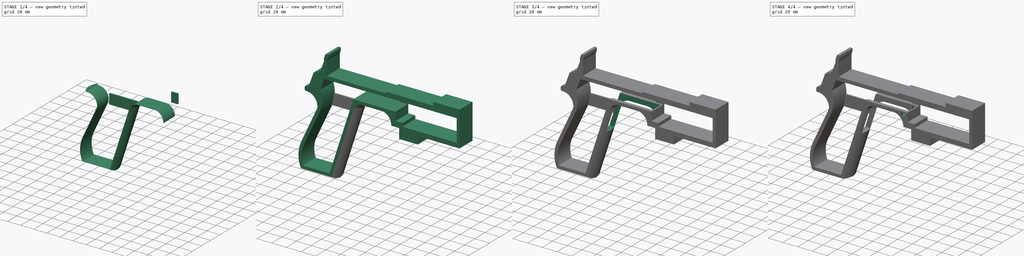
[diagram: build sequence overview — one tinted view per stage of 4, left to right]
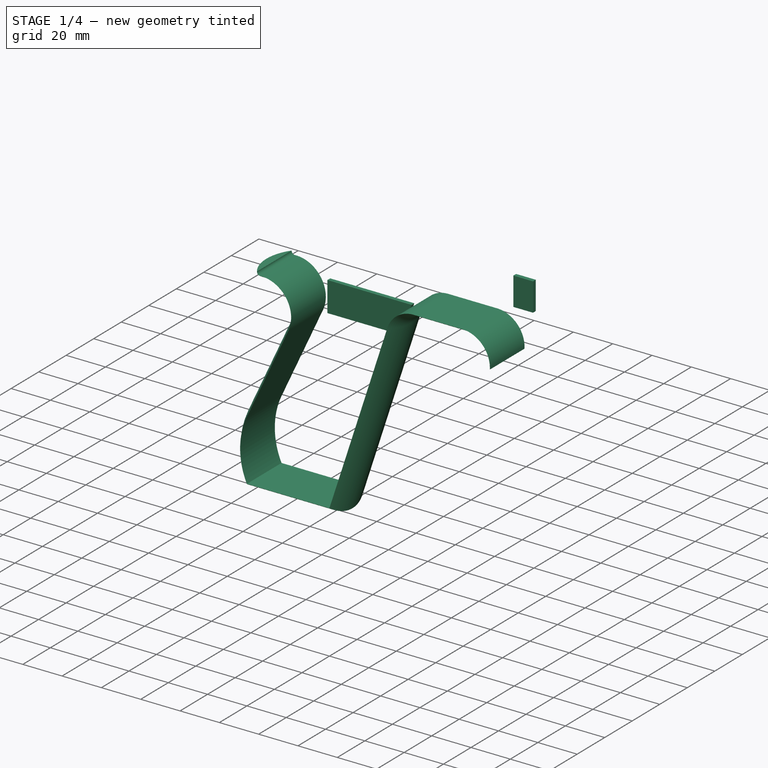
[diagram: stage 1 of 4 — iso view after this stage's code; geometry added in this stage tinted green]
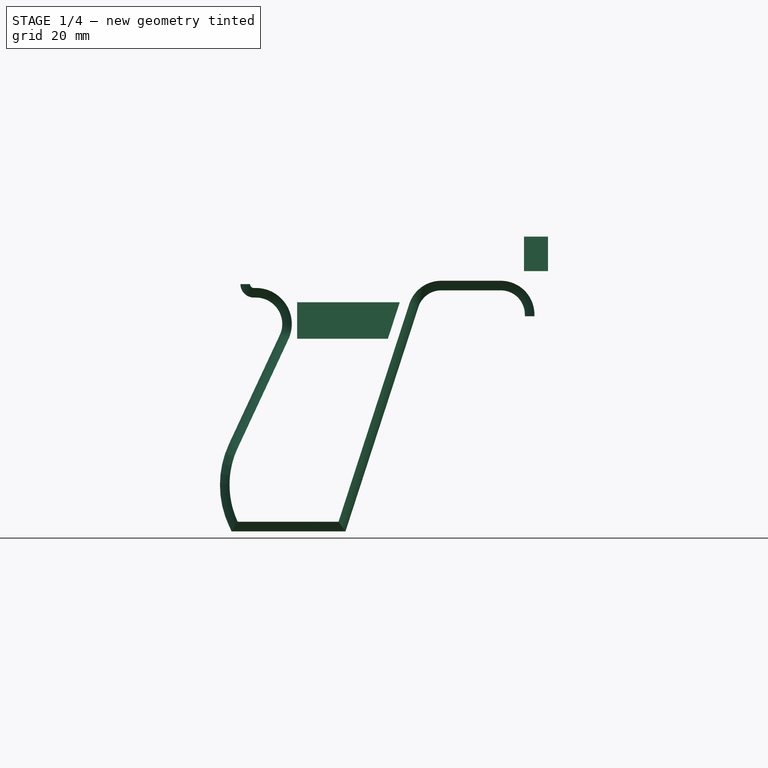
[diagram: stage 1 of 4 — front view after this stage's code; geometry added in this stage tinted green]
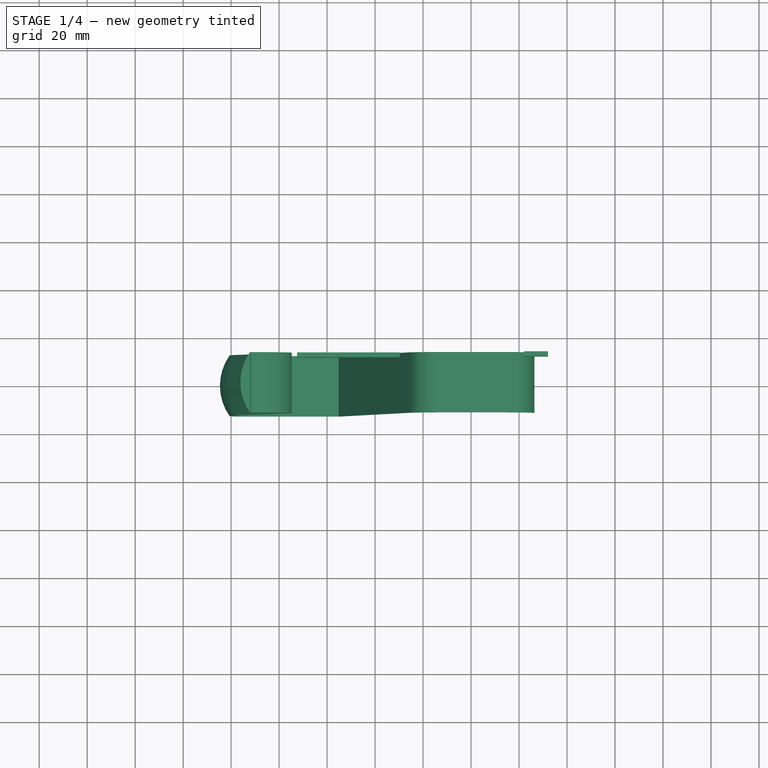
[diagram: stage 1 of 4 — top view after this stage's code; geometry added in this stage tinted green]
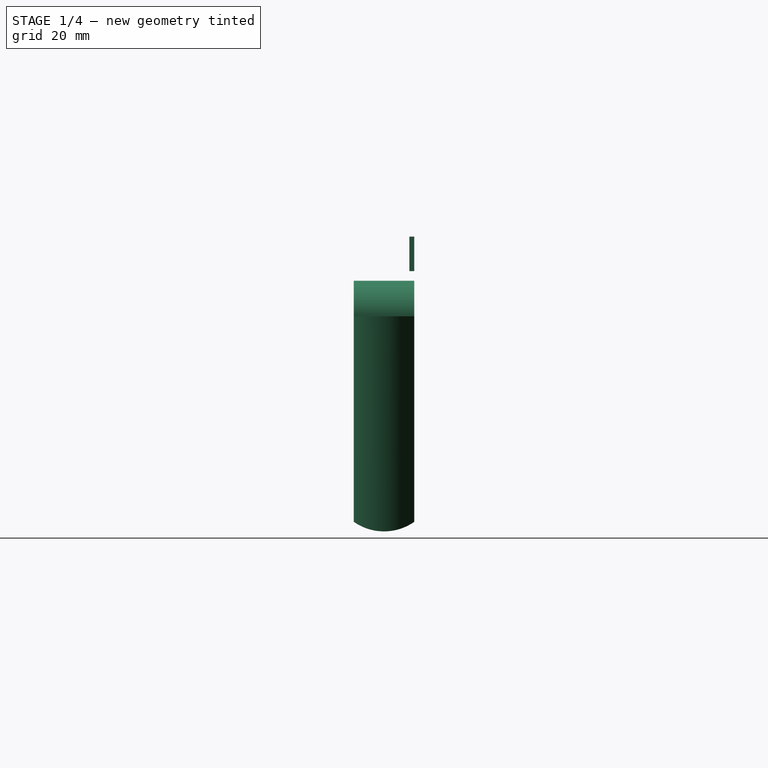
[diagram: stage 1 of 4 — right view after this stage's code; geometry added in this stage tinted green]
FCSTD DOCUMENT  (FreeCAD 1.0R39319 (Git))
Label: PICON-OF
License: All rights reserved
LicenseURL: https://en.wikipedia.org/wiki/All_rights_reserved
objects: Sketcher::SketchObject×6, Part::Extrusion×4, PartDesign::Plane×2, Part::MultiFuse×2, Part::Cut×2, Part::Sweep×1, PartDesign::ShapeBinder×1, PartDesign::Body×1
note: 25 computed .brp shape members not serialized (recipe doc carries the construction recipe); baked Part::Feature solids carry a one-line shape summary decoded from their .brp

FEATURE [Sketcher::SketchObject] Sketch004  label="traiettoria arrotondamento impugnatura anteriore"
  ArcFitTolerance = 1e-06
  AttachmentSupport = -> [XZ_Plane]
  ExternalGeometry = -> [Sketch]
  FullyConstrained = true
  MakeInternals = false
  MapMode = 5
  Placement = pos=(0,0,0) rot=(1,0,0;1.5708rad)
  sketch-geometry (13):
    g0: LineSegment StartX=-175.232 StartY=-82.4316 StartZ=0 EndX=-145.743 EndY=8.32624 EndZ=0
    g1: LineSegment StartX=-93.6 StartY=3.2 StartZ=0 EndX=-93.6 EndY=4 EndZ=0
    g2: LineSegment StartX=-132.428 StartY=18 StartZ=0 EndX=-107.6 EndY=18 EndZ=0
    g3: ArcOfCircle CenterX=-132.428 CenterY=4 CenterZ=0 NormalX=0 NormalY=0 NormalZ=1 AngleXU=0 Radius=14 StartAngle=1.5708 EndAngle=2.82743
    g4: ArcOfCircle CenterX=-107.6 CenterY=4 CenterZ=0 NormalX=0 NormalY=0 NormalZ=1 AngleXU=0 Radius=14 StartAngle=0 EndAngle=1.5708
    g5: LineSegment StartX=-175.232 StartY=-82.4316 StartZ=0 EndX=-217.232 EndY=-82.4316 EndZ=0
    g6: LineSegment StartX=-217.232 StartY=-51.6547 StartZ=0 EndX=-196.101 EndY=-6.33927 EndZ=0
    g7: LineSegment StartX=-210.496 StartY=15 StartZ=0 EndX=-209.696 EndY=15 EndZ=0
    g8: LineSegment StartX=-212.096 StartY=18.51 StartZ=0 EndX=-212.096 EndY=16.6 EndZ=0
    g9: ArcOfCircle CenterX=-184.232 CenterY=-67.0431 CenterZ=0 NormalX=0 NormalY=0 NormalZ=1 AngleXU=0 Radius=36.4122 StartAngle=2.70526 EndAngle=3.57792
    g10: ArcOfCircle CenterX=-209.696 CenterY=1.9e-15 CenterZ=0 NormalX=0 NormalY=0 NormalZ=1 AngleXU=0 Radius=15 StartAngle=5.84685 EndAngle=7.85398
    g11: ArcOfCircle CenterX=-210.496 CenterY=16.6 CenterZ=0 NormalX=0 NormalY=0 NormalZ=1 AngleXU=0 Radius=1.6 StartAngle=3.14159 EndAngle=4.71239
    g12: ArcOfCircle CenterX=-208.606 CenterY=18.51 CenterZ=0 NormalX=0 NormalY=0 NormalZ=1 AngleXU=0 Radius=3.49 StartAngle=1.5708 EndAngle=3.14159
  constraints (26):
    c: Coincident(g0,g-3)
    c: Coincident(g0,g-6)
    c: Coincident(g1,g-8)
    c: Coincident(g1,g-7)
    c: Coincident(g2,g-5)
    c: Coincident(g2,g-4)
    c: Coincident(g3,g2)
    c: Tangent(g3,g0) = 1.5708
    c: Coincident(g4,g1)
    c: Tangent(g4,g2) = 1.5708
    c: Coincident(g5,g0)
    c: Coincident(g5,g-9)
    c: Coincident(g6,g-12)
    c: Coincident(g6,g-11)
    c: Coincident(g7,g-15)
    c: Coincident(g7,g-14)
    c: Coincident(g8,g-16)
    c: Coincident(g8,g-17)
    c: Tangent(g9,g6) = 1.5708
    c: Coincident(g9,g5)
    c: Coincident(g10,g7)
    c: Tangent(g10,g6) = -1.5708
    c: Tangent(g11,g7) = -1.5708
    c: Coincident(g11,g8)
    c: Tangent(g12,g8) = -1.5708
    c: Coincident(g12,g-17)
FEATURE [PartDesign::Plane] DatumPlane  label="Piano per disegno arrotondamento impugnatura"
  AttachmentSupport = -> [Sketch]
  Length = 73.6605
  MapMode = 7
  Placement = pos=(-145.743,1.8e-15,8.32624) rot=(0.154555,0.154555,0.97582;1.59527rad)
  ResizeMode = 0
  Width = 303.569
FEATURE [Sketcher::SketchObject] Sketch005  label="forma arrotondamento impugnatura anteriore"
  ArcFitTolerance = 1e-06
  AttachmentSupport = -> [DatumPlane]
  FullyConstrained = true
  MakeInternals = false
  MapMode = 5
  Placement = pos=(-145.743,1.8e-15,8.32624) rot=(0.154555,0.154555,0.97582;1.59527rad)
  sketch-geometry (5):
    g0: GeomPoint [constr] X=0 Y=-4 Z=0
    g1: GeomPoint [constr] X=-12.6 Y=7.1e-15 Z=0
    g2: GeomPoint [constr] X=12.6 Y=4.97e-14 Z=0
    g3: LineSegment StartX=-12.6 StartY=7.1e-15 StartZ=0 EndX=12.6 EndY=4.97e-14 EndZ=0
    g4: ArcOfCircle CenterX=-3.88e-14 CenterY=17.845 CenterZ=0 NormalX=0 NormalY=0 NormalZ=1 AngleXU=0 Radius=21.845 StartAngle=4.09759 EndAngle=5.32718
  constraints (11):
    c: DistanceY(g0,g-1) = 4
    c: DistanceX(g-1,g0) = 0
    c: DistanceX(g1,g-1) = 12.6
    c: DistanceX(g-1,g2) = 12.6
    c: DistanceY(g-1,g2) = 0
    c: DistanceY(g-1,g1) = 0
    c: Coincident(g3,g1)
    c: Coincident(g3,g2)
    c: Coincident(g4,g1)
    c: Coincident(g4,g2)
    c: PointOnObject(g0,g4)
FEATURE [Part::Sweep] Sweep
  Frenet = true
  Sections = -> [Sketch005]
  Solid = true
  Spine = -> Sketch [Edge29,Edge30,Edge31,Edge32,Edge33,Edge34,Edge35,Edge36,Edge37,Edge38,Edge39]
  Transition = 1
FEATURE [PartDesign::ShapeBinder] CopyCut
  TraceSupport = false
FEATURE [PartDesign::Plane] DatumPlane001
  AttachmentSupport = -> [CopyCut]
  Length = 284.008
  MapMode = 5
  Placement = pos=(0,12.6,0) rot=(0,0.707107,0.707107;3.14159rad)
  ResizeMode = 0
  Width = 188.154
FEATURE [Sketcher::SketchObject] Sketch006  label="Rinforzi"
  ArcFitTolerance = 1e-06
  AttachmentSupport = -> [DatumPlane001]
  ExternalGeometry = -> [CopyCut]
  FullyConstrained = true
  MakeInternals = false
  MapMode = 5
  Placement = pos=(0,12.6,0) rot=(0,0.707107,0.707107;3.14159rad)
  sketch-geometry (9):
    g0: LineSegment StartX=87.91 StartY=22 StartZ=0 EndX=97.91 EndY=22 EndZ=0
    g1: LineSegment StartX=97.91 StartY=22 StartZ=0 EndX=97.91 EndY=36.4 EndZ=0
    g2: LineSegment StartX=97.91 StartY=36.4 StartZ=0 EndX=87.91 EndY=36.4 EndZ=0
    g3: LineSegment StartX=87.91 StartY=36.4 StartZ=0 EndX=87.91 EndY=22 EndZ=0
    g4: LineSegment StartX=149.713 StartY=9.06563 StartZ=0 EndX=192.476 EndY=9.06563 EndZ=0
    g5: LineSegment StartX=192.476 StartY=9.06563 StartZ=0 EndX=192.476 EndY=-6.13437 EndZ=0
    g6: LineSegment StartX=192.476 StartY=-6.13437 StartZ=0 EndX=154.651 EndY=-6.13437 EndZ=0
    g7: LineSegment StartX=154.651 StartY=-6.13437 StartZ=0 EndX=149.713 EndY=9.06563 EndZ=0
    g8: LineSegment [constr] StartX=145.51 StartY=22 StartZ=0 EndX=149.713 EndY=9.06563 EndZ=0
  constraints (25):
    c: Coincident(g0,g1)
    c: Coincident(g1,g2)
    c: Coincident(g2,g3)
    c: Coincident(g3,g0)
    c: Horizontal(g0)
    c: Horizontal(g2)
    c: Vertical(g1)
    c: Vertical(g3)
    c: Coincident(g0,g-5)
    c: DistanceX(g2,g2) = 10
    c: DistanceY(g2,g-8) = 0
    c: Horizontal(g4)
    c: Coincident(g4,g5)
    c: Coincident(g5,g6)
    c: Horizontal(g6)
    c: Coincident(g6,g7)
    c: Coincident(g7,g4)
    c: Parallel(g7,g-4)
    c: Parallel(g8,g-4)
    c: Distance(g8) = 13.6
    c: Coincident(g8,g-4)
    c: DistanceY(g6,g4) = 15.2
    c: Coincident(g4,g8)
    c: DistanceX(g4,g-7) = 0
    c: Vertical(g5)
FEATURE [Part::Extrusion] Extrude002  label="Estrusione rinforzi"
  Base = -> Sketch006
  Dir = (0,1,-2e-16)
  DirMode = 2
  FaceMakerClass = Part::FaceMakerBullseye
  FaceMakerMode = 3
  LengthFwd = 0
  LengthRev = 2
  Solid = true
  Symmetric = false
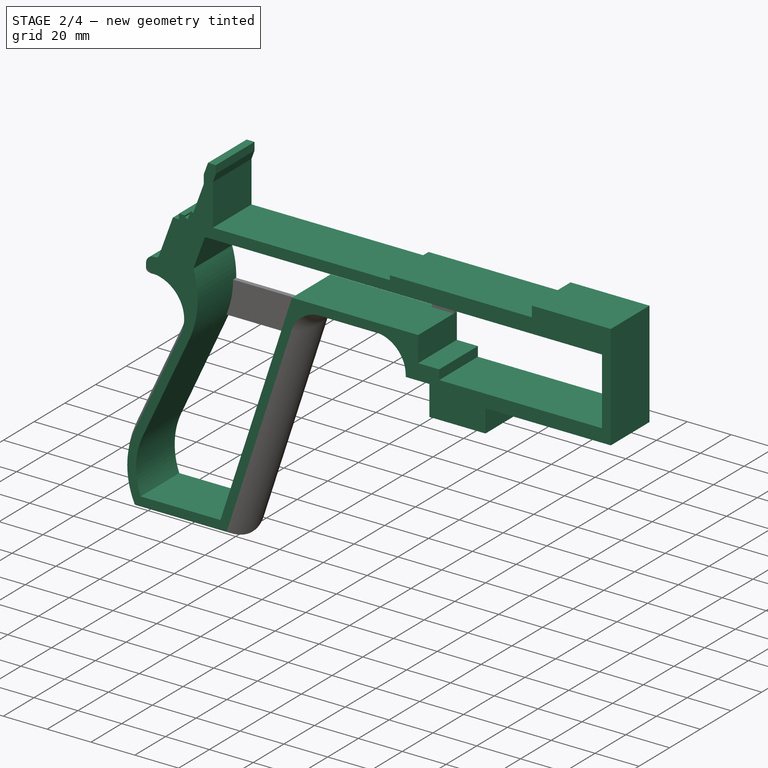
[diagram: stage 2 of 4 — iso view after this stage's code; geometry added in this stage tinted green]
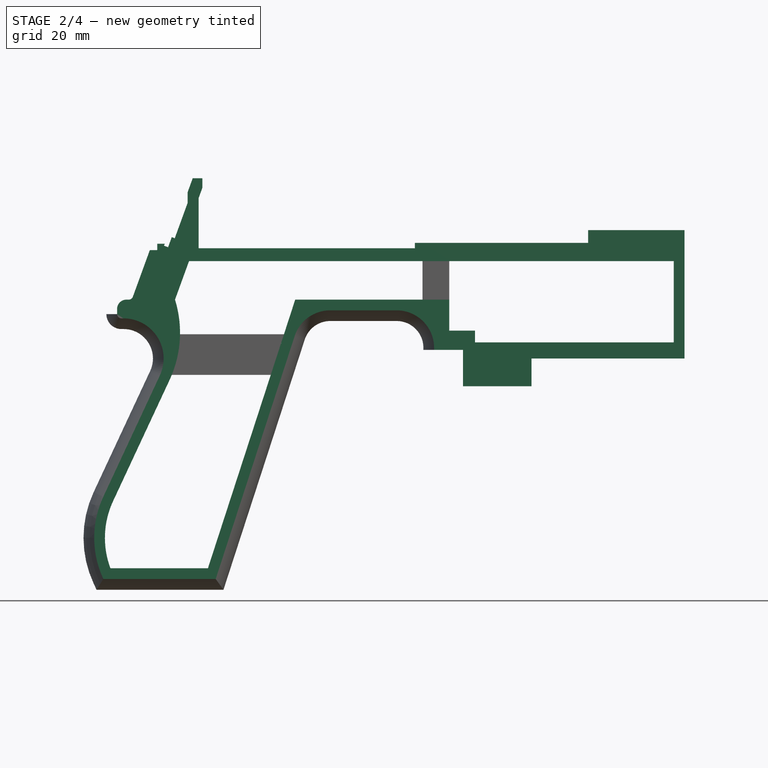
[diagram: stage 2 of 4 — front view after this stage's code; geometry added in this stage tinted green]
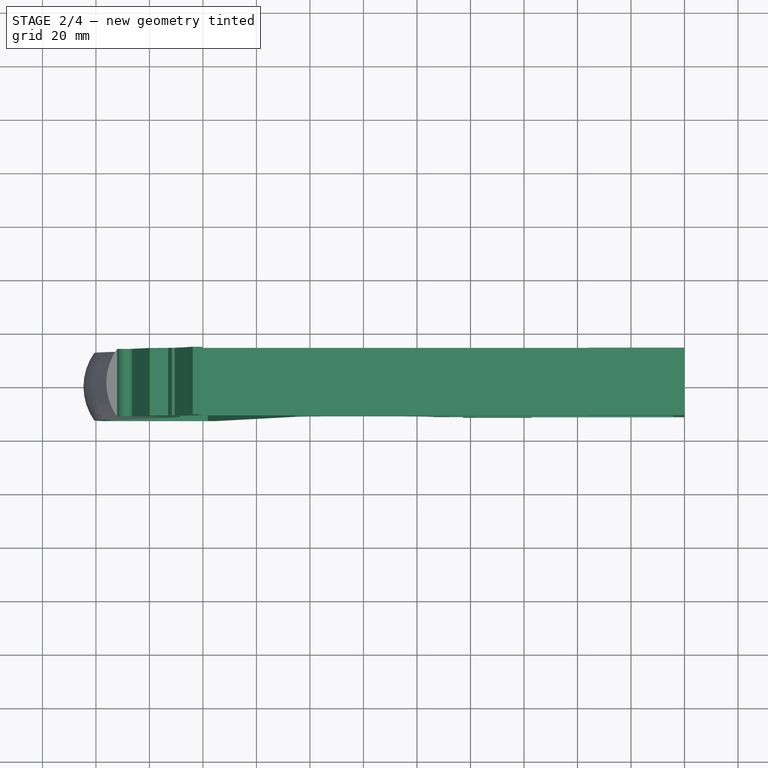
[diagram: stage 2 of 4 — top view after this stage's code; geometry added in this stage tinted green]
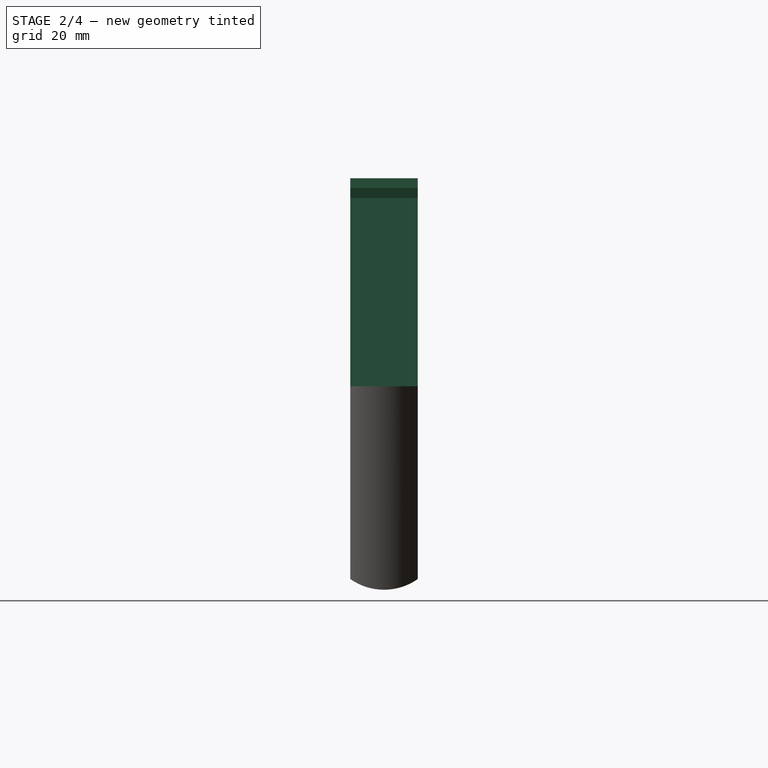
[diagram: stage 2 of 4 — right view after this stage's code; geometry added in this stage tinted green]
FEATURE [Sketcher::SketchObject] Sketch  label="corpo principale"
  ArcFitTolerance = 1e-06
  AttachmentSupport = -> [XZ_Plane]
  FullyConstrained = true
  MakeInternals = false
  MapMode = 5
  Placement = pos=(0,0,0) rot=(1,0,0;1.5708rad)
  sketch-geometry (60):
    g0: LineSegment StartX=0 StartY=0 StartZ=0 EndX=-57.2 EndY=0 EndZ=0
    g1: LineSegment StartX=-57.2 StartY=0 StartZ=0 EndX=-57.2 EndY=-10.4 EndZ=0
    g2: LineSegment StartX=-57.2 StartY=-10.4 StartZ=0 EndX=-82.8 EndY=-10.4 EndZ=0
    g3: LineSegment StartX=-82.8 StartY=-10.4 StartZ=0 EndX=-82.8 EndY=3.2 EndZ=0
    g4: LineSegment StartX=-82.8 StartY=3.2 StartZ=0 EndX=-93.6 EndY=3.2 EndZ=0
    g5: LineSegment StartX=-93.6 StartY=3.2 StartZ=0 EndX=-93.6 EndY=4 EndZ=0
    g6: LineSegment StartX=-107.6 StartY=18 StartZ=0 EndX=-132.428 EndY=18 EndZ=0
    g7: LineSegment StartX=-145.743 StartY=8.32624 StartZ=0 EndX=-175.232 EndY=-82.4316 EndZ=0
    g8: LineSegment StartX=-175.232 StartY=-82.4316 StartZ=0 EndX=-217.232 EndY=-82.4316 EndZ=0
    g9: LineSegment StartX=-217.232 StartY=-51.6547 StartZ=0 EndX=-196.101 EndY=-6.33927 EndZ=0
    g10: LineSegment StartX=-206.196 StartY=23.0857 StartZ=0 EndX=-199.861 EndY=40.4914 EndZ=0
    g11: LineSegment StartX=-199.861 StartY=40.4914 StartZ=0 EndX=-197.061 EndY=40.4914 EndZ=0
    g12: LineSegment StartX=-197.061 StartY=40.4914 StartZ=0 EndX=-197.061 EndY=42.8914 EndZ=0
    g13: LineSegment StartX=-197.061 StartY=42.8914 StartZ=0 EndX=-194.261 EndY=42.8914 EndZ=0
    g14: LineSegment StartX=-194.261 StartY=42.8914 StartZ=0 EndX=-194.535 EndY=42.1397 EndZ=0
    g15: LineSegment StartX=-194.535 StartY=42.1397 StartZ=0 EndX=-193.031 EndY=41.5924 EndZ=0
    g16: LineSegment StartX=-193.031 StartY=41.5924 StartZ=0 EndX=-191.663 EndY=45.3512 EndZ=0
    g17: LineSegment StartX=-191.663 StartY=45.3512 StartZ=0 EndX=-190.536 EndY=44.9408 EndZ=0
    g18: LineSegment StartX=-190.536 StartY=44.9408 StartZ=0 EndX=-185.747 EndY=58.0965 EndZ=0
    g19: LineSegment StartX=-185.747 StartY=58.0965 StartZ=0 EndX=-185.747 EndY=62.0965 EndZ=0
    g20: LineSegment StartX=-185.747 StartY=62.0965 StartZ=0 EndX=-183.832 EndY=67.3588 EndZ=0
    g21: LineSegment StartX=-183.832 StartY=67.3588 StartZ=0 EndX=-180.232 EndY=67.3588 EndZ=0
    g22: LineSegment StartX=-180.232 StartY=67.3588 StartZ=0 EndX=-180.232 EndY=63.7588 EndZ=0
    g23: LineSegment StartX=-180.232 StartY=63.7588 StartZ=0 EndX=-181.6 EndY=60 EndZ=0
    g24: LineSegment StartX=-181.6 StartY=60 StartZ=0 EndX=-181.6 EndY=41.2 EndZ=0
    g25: LineSegment StartX=-181.6 StartY=41.2 StartZ=0 EndX=-100.8 EndY=41.2 EndZ=0
    g26: LineSegment StartX=-100.8 StartY=41.2 StartZ=0 EndX=-100.8 EndY=43.2 EndZ=0
    g27: LineSegment StartX=-100.8 StartY=43.2 StartZ=0 EndX=-36 EndY=43.2 EndZ=0
    g28: LineSegment StartX=-36 StartY=43.2 StartZ=0 EndX=-36 EndY=48 EndZ=0
    g29: LineSegment StartX=-36 StartY=48 StartZ=0 EndX=0 EndY=48 EndZ=0
    g30: LineSegment StartX=0 StartY=48 StartZ=0 EndX=0 EndY=0 EndZ=0
    g31: LineSegment StartX=-212.096 StartY=16.6 StartZ=0 EndX=-212.096 EndY=18.51 EndZ=0
    g32: LineSegment StartX=-208.606 StartY=22 StartZ=0 EndX=-207.747 EndY=22 EndZ=0
    g33: LineSegment StartX=-209.696 StartY=15 StartZ=0 EndX=-210.496 EndY=15 EndZ=0
    g34: ArcOfCircle CenterX=-208.606 CenterY=18.51 CenterZ=0 NormalX=0 NormalY=0 NormalZ=1 AngleXU=0 Radius=3.49 StartAngle=1.5708 EndAngle=3.14159
    g35: GeomPoint [constr] X=-212.096 Y=22 Z=0
    g36: ArcOfCircle CenterX=-210.496 CenterY=16.6 CenterZ=0 NormalX=0 NormalY=0 NormalZ=1 AngleXU=0 Radius=1.6 StartAngle=3.14159 EndAngle=4.71239
    g37: GeomPoint [constr] X=-212.096 Y=15 Z=0
    g38: ArcOfCircle CenterX=-207.747 CenterY=23.65 CenterZ=0 NormalX=0 NormalY=0 NormalZ=1 AngleXU=0 Radius=1.65 StartAngle=4.71239 EndAngle=5.93412
    g39: GeomPoint [constr] X=-206.591 Y=22 Z=0
    g40: LineSegment StartX=-4 StartY=6 StartZ=0 EndX=-4 EndY=36.4 EndZ=0
    g41: LineSegment StartX=-4 StartY=36.4 StartZ=0 EndX=-185.2 EndY=36.4 EndZ=0
    g42: LineSegment StartX=-185.2 StartY=36.4 StartZ=0 EndX=-190.441 EndY=22 EndZ=0
    g43: LineSegment StartX=-214.577 StartY=-78.4316 StartZ=0 EndX=-178.142 EndY=-78.4316 EndZ=0
    g44: LineSegment StartX=-178.142 StartY=-78.4316 StartZ=0 EndX=-145.51 EndY=22 EndZ=0
    g45: LineSegment StartX=-145.51 StartY=22 StartZ=0 EndX=-87.91 EndY=22 EndZ=0
    g46: LineSegment StartX=-87.91 StartY=22 StartZ=0 EndX=-87.91 EndY=10.4 EndZ=0
    g47: LineSegment StartX=-87.91 StartY=10.4 StartZ=0 EndX=-78.31 EndY=10.4 EndZ=0
    g48: LineSegment StartX=-78.31 StartY=10.4 StartZ=0 EndX=-78.31 EndY=6 EndZ=0
    g49: LineSegment StartX=-78.31 StartY=6 StartZ=0 EndX=-4 EndY=6 EndZ=0
    g50: LineSegment StartX=-192.476 StartY=-8.02975 StartZ=0 EndX=-213.607 EndY=-53.3451 EndZ=0
    g51: ArcOfCircle CenterX=-132.428 CenterY=4 CenterZ=0 NormalX=0 NormalY=0 NormalZ=1 AngleXU=0 Radius=14 StartAngle=1.5708 EndAngle=2.82743
    g52: GeomPoint [constr] X=-142.6 Y=18 Z=0
    g53: ArcOfCircle CenterX=-107.6 CenterY=4 CenterZ=0 NormalX=0 NormalY=0 NormalZ=1 AngleXU=0 Radius=14 StartAngle=0 EndAngle=1.5708
    g54: GeomPoint [constr] X=-93.6 Y=18 Z=0
    g55: ArcOfCircle CenterX=-184.232 CenterY=-67.0431 CenterZ=0 NormalX=0 NormalY=0 NormalZ=1 AngleXU=0 Radius=36.4122 StartAngle=2.70526 EndAngle=3.57792
    g56: ArcOfCircle CenterX=-209.696 CenterY=0 CenterZ=0 NormalX=0 NormalY=0 NormalZ=1 AngleXU=0 Radius=15 StartAngle=5.84685 EndAngle=7.85398
    g57: LineSegment [constr] StartX=-213.607 StartY=-53.3451 StartZ=0 EndX=-217.232 EndY=-51.6547 EndZ=0
    g58: ArcOfCircle CenterX=-184.232 CenterY=-67.0431 CenterZ=0 NormalX=0 NormalY=0 NormalZ=1 AngleXU=0 Radius=32.4122 StartAngle=2.70526 EndAngle=3.50062
    g59: ArcOfCircle CenterX=-230.323 CenterY=9.61867 CenterZ=0 NormalX=0 NormalY=0 NormalZ=1 AngleXU=0 Radius=41.7597 StartAngle=5.84685 EndAngle=6.5842
  constraints (166):
    c: Coincident(g-1,g0)
    c: PointOnObject(g0,g-1)
    c: Coincident(g0,g1)
    c: Vertical(g1)
    c: Coincident(g1,g2)
    c: Horizontal(g2)
    c: Coincident(g2,g3)
    c: Vertical(g3)
    c: Coincident(g3,g4)
    c: Coincident(g4,g5)
    c: Vertical(g5)
    c: Horizontal(g6)
    c: Coincident(g7,g8)
    c: Horizontal(g8)
    c: Coincident(g10,g11)
    c: Horizontal(g11)
    c: Coincident(g11,g12)
    c: Vertical(g12)
    c: Coincident(g12,g13)
    c: Horizontal(g13)
    c: Coincident(g13,g14)
    c: Coincident(g14,g15)
    c: Coincident(g15,g16)
    c: Coincident(g16,g17)
    c: Coincident(g17,g18)
    c: Coincident(g18,g19)
    c: Vertical(g19)
    c: Coincident(g19,g20)
    c: Coincident(g20,g21)
    c: Horizontal(g21)
    c: Coincident(g21,g22)
    c: Vertical(g22)
    c: Coincident(g22,g23)
    c: Coincident(g23,g24)
    c: Vertical(g24)
    c: Coincident(g24,g25)
    c: Horizontal(g25)
    c: Coincident(g25,g26)
    c: Vertical(g26)
    c: Coincident(g26,g27)
    c: Horizontal(g27)
    c: Coincident(g27,g28)
    c: Vertical(g28)
    c: Coincident(g28,g29)
    c: PointOnObject(g29,g-2)
    c: Horizontal(g29)
    c: Coincident(g29,g30)
    c: Coincident(g30,g0)
    c: DistanceY(g30,g30) = 48
    c: DistanceY(g1,g1) = 10.4
    c: DistanceX(g0,g0) = 57.2
    c: DistanceX(g2,g2) = 25.6
    c: Horizontal(g4)
    c: DistanceY(g3,g3) = 13.6
    c: DistanceX(g4,g4) = 10.8
    c: DistanceY(g5,g54) = 14.8
    c: DistanceX(g52,g54) = 49
    c: Distance(g7,g52) = 105.6
    c: DistanceX(g29,g29) = 36
    c: DistanceX(g27,g27) = 64.8
    c: DistanceY(g26,g26) = 2
    c: DistanceY(g28,g28) = 4.8
    c: DistanceX(g25,g25) = 80.8
    c: DistanceY(g24,g24) = 18.8
    c: DistanceY(g22,g22) = 3.6
    c: Distance(g23) = 4
    c: Angle(g-1,g23) = 1.22173
    c: DistanceX(g21,g21) = 3.6
    c: Distance(g20) = 5.6
    c: Angle(g-1,g20) = 1.22173
    c: DistanceY(g19,g19) = 4
    c: Distance(g18) = 14
    c: Angle(g-1,g18) = 1.22173
    c: Distance(g17) = 1.2
    c: Distance(g16) = 4
    c: Angle(g16) = 1.22173
    c: Perpendicular(g18,g17)
    c: Distance(g15) = 1.6
    c: Perpendicular(g16,g15)
    c: Distance(g14) = 0.8
    c: DistanceX(g13,g13) = 2.8
    c: Perpendicular(g15,g14)
    c: DistanceY(g12,g12) = 2.4
    c: DistanceX(g11,g11) = 2.8
    c: Distance(g9) = 50
    c: Angle(g9,g-1) = 2.00713
    c: Horizontal(g32)
    c: Vertical(g31)
    c: Horizontal(g33)
    c: PointOnObject(g35,g32)
    c: PointOnObject(g35,g31)
    c: Tangent(g32,g34) = 1.5708
    c: Tangent(g31,g34) = 1.5708
    c: PointOnObject(g37,g31)
    c: PointOnObject(g37,g33)
    c: Tangent(g31,g36) = 1.5708
    c: Tangent(g33,g36) = 1.5708
    c: PointOnObject(g39,g32)
    c: PointOnObject(g39,g10)
    c: Tangent(g32,g38) = -1.5708
    c: Tangent(g10,g38) = -1.5708
    c: Angle(g-1,g10) = 1.22173
    c: Radius(g38) = 1.65
    c: Radius(g36) = 1.6
    c: Distance(g33) = 0.8
    c: Vertical(g40)
    c: Coincident(g40,g41)
    c: Horizontal(g41)
    c: Coincident(g41,g42)
    c: Horizontal(g43)
    c: Coincident(g43,g44)
    c: Coincident(g44,g45)
    c: Horizontal(g45)
    c: Coincident(g45,g46)
    c: Vertical(g46)
    c: Coincident(g46,g47)
    c: Horizontal(g47)
    c: Coincident(g47,g48)
    c: Vertical(g48)
    c: Coincident(g48,g49)
    c: Coincident(g49,g40)
    c: Horizontal(g49)
    c: DistanceY(g0,g40) = 6
    c: DistanceX(g40,g0) = 4
    c: DistanceY(g40,g25) = 4.8
    c: DistanceX(g41,g41) = 181.2
    c: DistanceX(g45,g45) = 57.6
    c: DistanceY(g52,g44) = 4
    c: DistanceX(g44,g52) = 2.91
    c: DistanceY(g46,g46) = 11.6
    c: DistanceX(g47,g47) = 9.6
    c: DistanceY(g7,g43) = 4
    c: Distance(g50) = 50
    c: Angle(g-1,g42) = 1.22173
    c: PointOnObject(g52,g7)
    c: PointOnObject(g52,g6)
    c: Tangent(g7,g51) = -1.5708
    c: Tangent(g6,g51) = -1.5708
    c: PointOnObject(g54,g5)
    c: PointOnObject(g54,g6)
    c: Tangent(g5,g53) = -1.5708
    c: Tangent(g6,g53) = -1.5708
    c: Radius(g53) = 14
    c: Radius(g51) = 14
    c: DistanceX(g8,g8) = 42
    c: Angle(g7,g-1) = 1.88496
    c: Parallel(g44,g7)
    c: Parallel(g50,g9)
    c: Coincident(g55,g8)
    c: Tangent(g55,g9) = 1.5708
    c: DistanceX(g9,g8) = 0
    c: Tangent(g56,g9) = -1.5708
    c: Tangent(g56,g33) = -1.5708
    c: Diameter(g56) = 30
    c: DistanceY(g56,g0) = 0
    c: Coincident(g57,g50)
    c: Distance(g57) = 4
    c: Coincident(g57,g9)
    c: Coincident(g58,g43)
    c: Tangent(g58,g50) = -1.5708
    c: Coincident(g55,g58)
    c: DistanceY(g44,g39) = 0
    c: DistanceY(g42,g44) = 0
    c: Coincident(g59,g42)
    c: Tangent(g59,g50) = 1.5708
    c: DistanceX(g31,g32) = 3.49
FEATURE [Part::Extrusion] Extrude  label="Extrude corpo principale"
  Base = -> Sketch
  Dir = (0,-1,2e-16)
  DirMode = 2
  FaceMakerClass = Part::FaceMakerBullseye
  FaceMakerMode = 3
  LengthFwd = 25.2
  LengthRev = 12.6
  Solid = true
  Symmetric = true
FEATURE [Part::MultiFuse] Fusion
  Refine = true
  Shapes = -> [Extrude,Sweep]
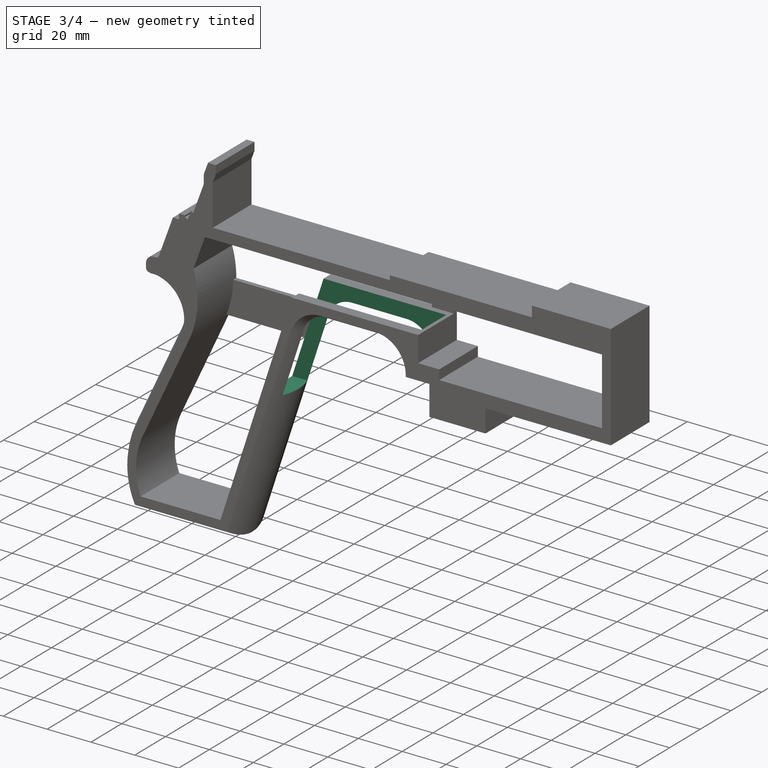
[diagram: stage 3 of 4 — iso view after this stage's code; geometry added in this stage tinted green]
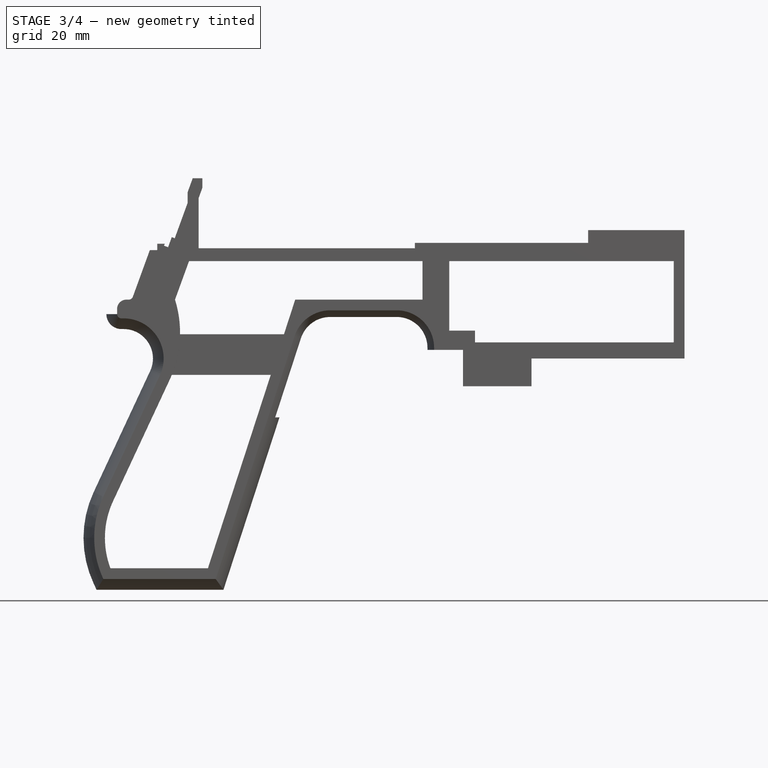
[diagram: stage 3 of 4 — front view after this stage's code; geometry added in this stage tinted green]
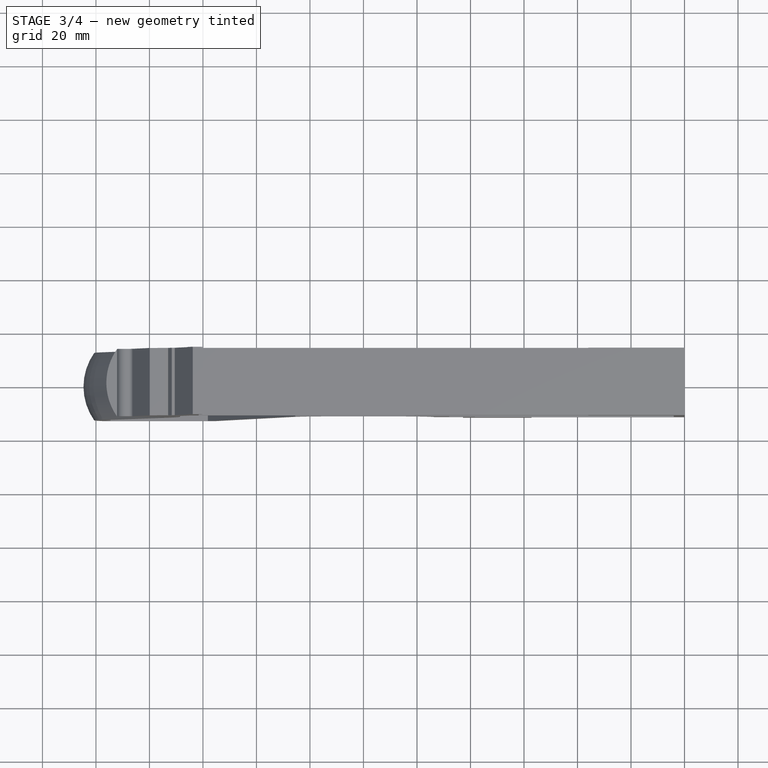
[diagram: stage 3 of 4 — top view after this stage's code; geometry added in this stage tinted green]
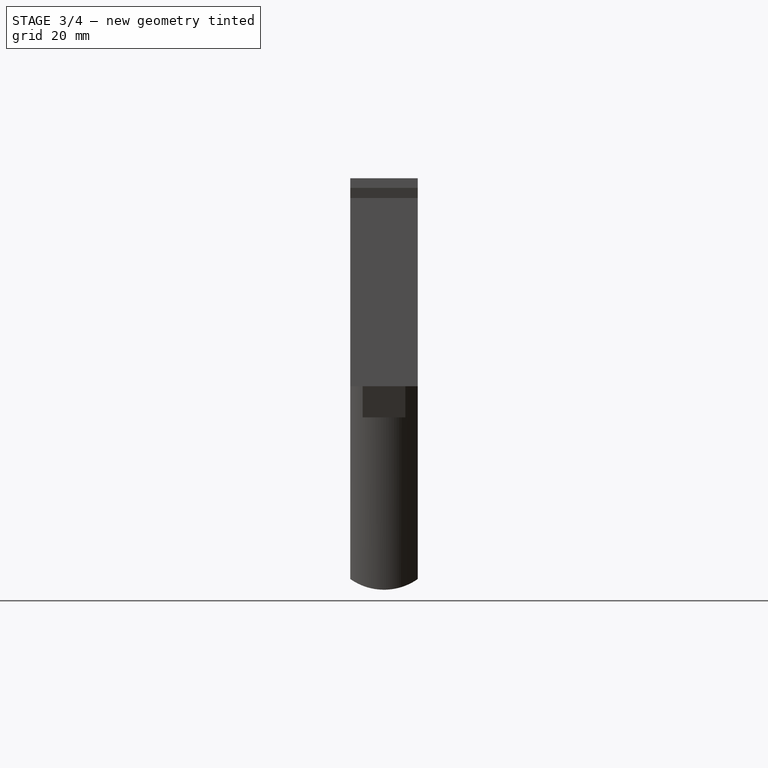
[diagram: stage 3 of 4 — right view after this stage's code; geometry added in this stage tinted green]
FEATURE [Sketcher::SketchObject] Sketch002  label="scavo grilletto"
  ArcFitTolerance = 1e-06
  AttachmentSupport = -> [XZ_Plane]
  ExternalGeometry = -> [Sketch]
  FullyConstrained = true
  MakeInternals = false
  MapMode = 5
  Placement = pos=(0,0,0) rot=(1,0,0;1.5708rad)
  sketch-geometry (4):
    g0: LineSegment StartX=-89.51 StartY=22 StartZ=0 EndX=-152.71 EndY=22 EndZ=0
    g1: LineSegment StartX=-152.71 StartY=22 StartZ=0 EndX=-167.006 EndY=-22 EndZ=0
    g2: LineSegment StartX=-167.006 StartY=-22 StartZ=0 EndX=-89.51 EndY=-22 EndZ=0
    g3: LineSegment StartX=-89.51 StartY=-22 StartZ=0 EndX=-89.51 EndY=22 EndZ=0
  constraints (12):
    c: Horizontal(g0)
    c: Coincident(g0,g1)
    c: Coincident(g1,g2)
    c: Horizontal(g2)
    c: Coincident(g2,g3)
    c: Coincident(g3,g0)
    c: Vertical(g3)
    c: Angle(g1,g0) = 1.88496
    c: DistanceY(g3,g3) = 44
    c: DistanceX(g0,g0) = 63.2
    c: DistanceX(g0,g-3) = 1.6
    c: DistanceY(g-3,g0) = 0
FEATURE [Part::Extrusion] Extrude001  label="Extrude scavo grilletto"
  Base = -> Sketch002
  Dir = (0,-1,2e-16)
  DirMode = 2
  FaceMakerClass = Part::FaceMakerBullseye
  FaceMakerMode = 3
  LengthFwd = 16
  LengthRev = 0
  Solid = true
  Symmetric = true
FEATURE [Part::Cut] Cut
  Base = -> Fusion
  Refine = true
  Tool = -> Extrude001
FEATURE [Part::MultiFuse] Fusion001
  Refine = true
  Shapes = -> [Cut,Extrude002]
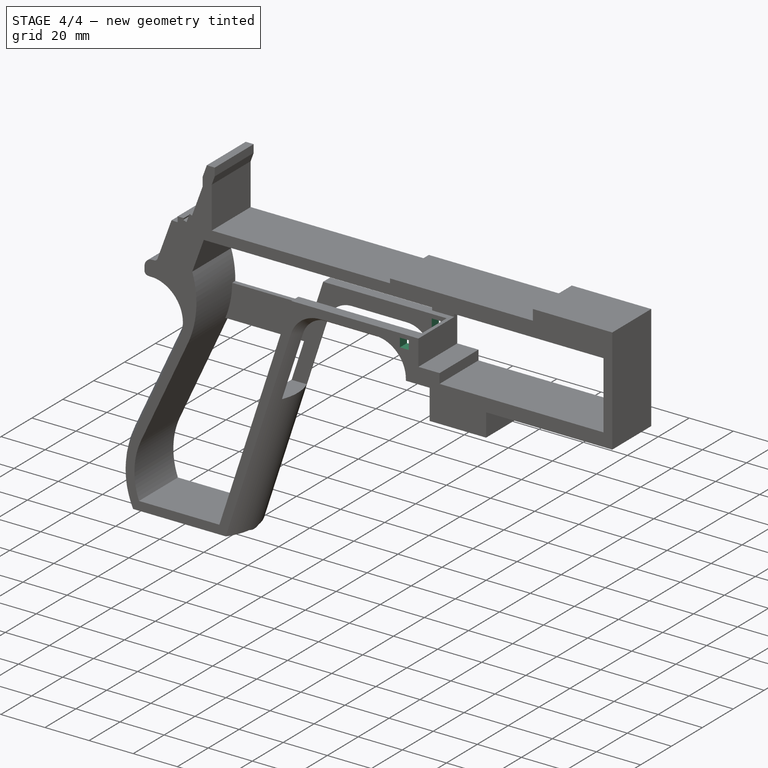
[diagram: stage 4 of 4 — iso view after this stage's code; geometry added in this stage tinted green]
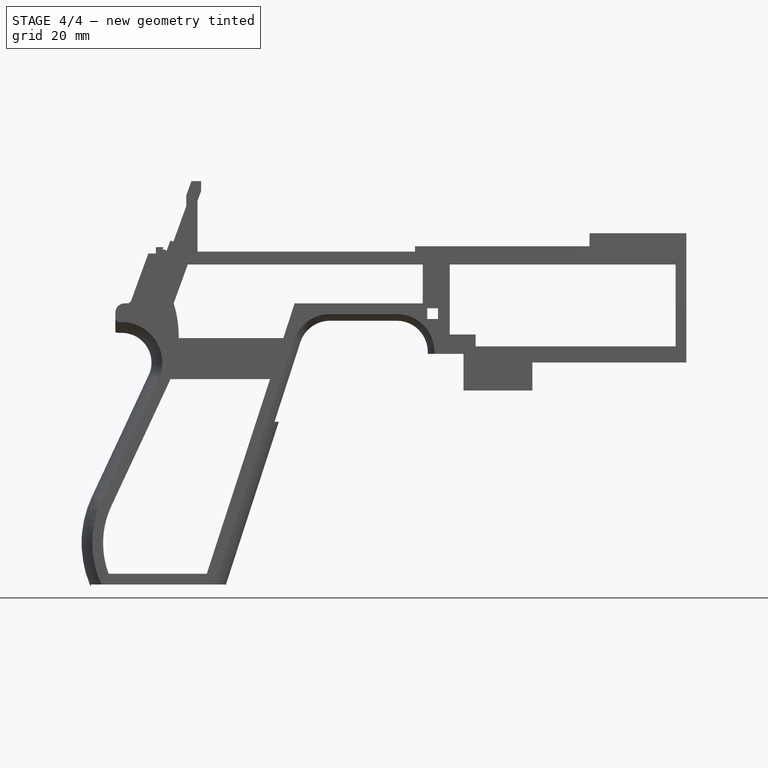
[diagram: stage 4 of 4 — front view after this stage's code; geometry added in this stage tinted green]
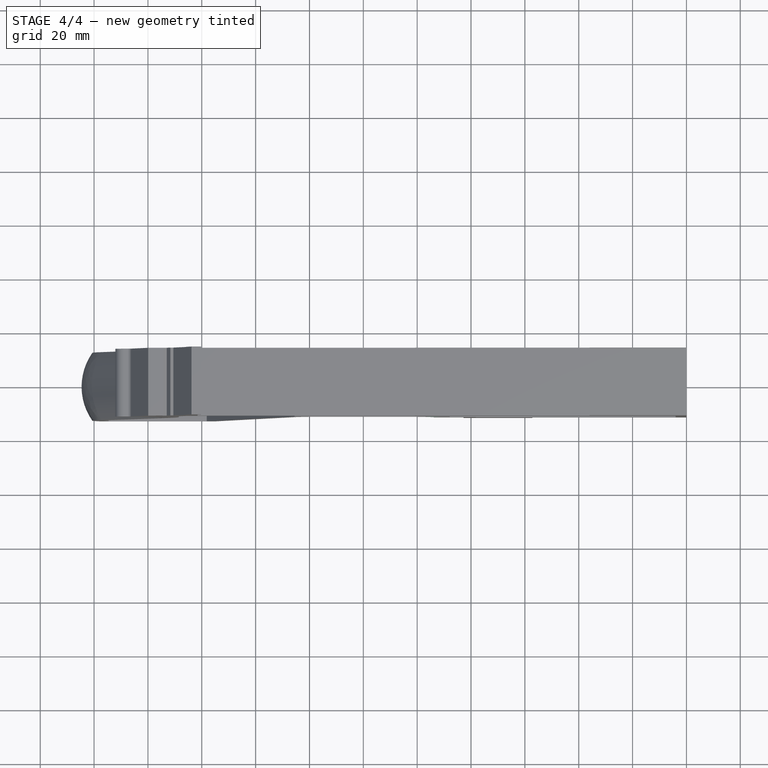
[diagram: stage 4 of 4 — top view after this stage's code; geometry added in this stage tinted green]
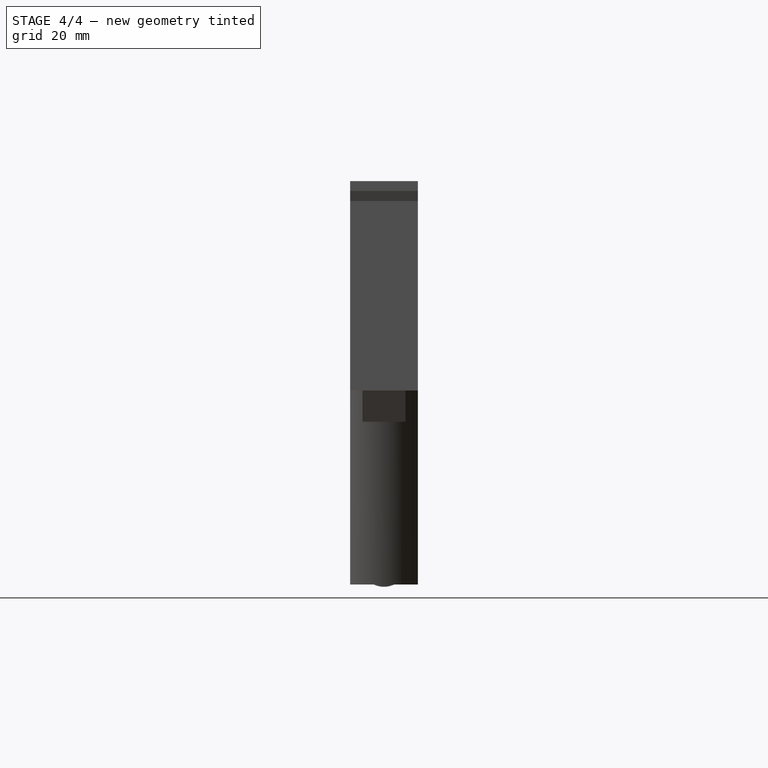
[diagram: stage 4 of 4 — right view after this stage's code; geometry added in this stage tinted green]
FEATURE [Sketcher::SketchObject] Sketch007  label="buco grilletto e pulizia base impugnatura"
  ArcFitTolerance = 1e-06
  AttachmentSupport = -> [DatumPlane001]
  ExternalGeometry = -> [CopyCut]
  FullyConstrained = true
  MakeInternals = false
  MapMode = 5
  Placement = pos=(0,12.6,0) rot=(0,0.707107,0.707107;3.14159rad)
  sketch-geometry (12):
    g0: LineSegment StartX=92.278 StartY=16.155 StartZ=0 EndX=96.278 EndY=16.155 EndZ=0
    g1: LineSegment StartX=96.278 StartY=20.155 StartZ=0 EndX=92.278 EndY=20.155 EndZ=0
    g2: LineSegment StartX=92.278 StartY=20.155 StartZ=0 EndX=92.278 EndY=16.155 EndZ=0
    g3: LineSegment StartX=96.278 StartY=16.155 StartZ=0 EndX=96.278 EndY=20.155 EndZ=0
    g4: LineSegment StartX=171.232 StartY=-82.4316 StartZ=0 EndX=221.232 EndY=-82.4316 EndZ=0
    g5: LineSegment StartX=221.232 StartY=-82.4316 StartZ=0 EndX=221.232 EndY=-86.4316 EndZ=0
    g6: LineSegment StartX=221.232 StartY=-86.4316 StartZ=0 EndX=171.232 EndY=-86.4316 EndZ=0
    g7: LineSegment StartX=171.232 StartY=-86.4316 StartZ=0 EndX=171.232 EndY=-82.4316 EndZ=0
    g8: LineSegment StartX=212.096 StartY=16.6 StartZ=0 EndX=212.096 EndY=11 EndZ=0
    g9: LineSegment StartX=212.096 StartY=11 StartZ=0 EndX=216.096 EndY=11 EndZ=0
    g10: LineSegment StartX=216.096 StartY=11 StartZ=0 EndX=216.096 EndY=16.6 EndZ=0
    g11: LineSegment StartX=216.096 StartY=16.6 StartZ=0 EndX=212.096 EndY=16.6 EndZ=0
  constraints (35):
    c: Coincident(g2,g1)
    c: Coincident(g2,g0)
    c: Vertical(g2)
    c: Coincident(g3,g0)
    c: Coincident(g3,g1)
    c: Vertical(g3)
    c: Horizontal(g0)
    c: Horizontal(g1)
    c: DistanceY(g0,g1) = 4
    c: DistanceX(g0,g0) = 4
    c: DistanceX(g-4,g1) = 4.368
    c: DistanceY(g1,g-4) = 1.845
    c: Horizontal(g4)
    c: Coincident(g4,g5)
    c: Vertical(g5)
    c: Coincident(g5,g6)
    c: Horizontal(g6)
    c: Coincident(g6,g7)
    c: Coincident(g7,g4)
    c: Vertical(g7)
    c: DistanceY(g4,g-5) = 0
    c: DistanceX(g-5,g4) = 4
    c: DistanceX(g4,g-5) = 4
    c: DistanceY(g6,g-5) = 4
    c: Coincident(g-7,g8)
    c: Coincident(g8,g9)
    c: Horizontal(g9)
    c: Coincident(g9,g10)
    c: Vertical(g10)
    c: Coincident(g10,g11)
    c: Coincident(g11,g8)
    c: Horizontal(g11)
    c: Vertical(g8)
    c: DistanceX(g11,g11) = 4
    c: DistanceY(g8,g-8) = 4
FEATURE [PartDesign::Body] Body  label="Corpo"
  AllowCompound = false
  Group = -> [Sketch,Sketch002,Sketch004,DatumPlane,Sketch005,DatumPlane001,CopyCut,Sketch006,Sketch007]
  Origin = -> Origin
FEATURE [Part::Extrusion] Extrude003
  Base = -> Sketch007
  Dir = (0,1,-2e-16)
  DirMode = 2
  FaceMakerClass = Part::FaceMakerBullseye
  FaceMakerMode = 3
  LengthFwd = 0
  LengthRev = 25.2
  Solid = true
  Symmetric = false
FEATURE [Part::Cut] Cut001
  Base = -> Fusion001
  Refine = true
  Tool = -> Extrude003
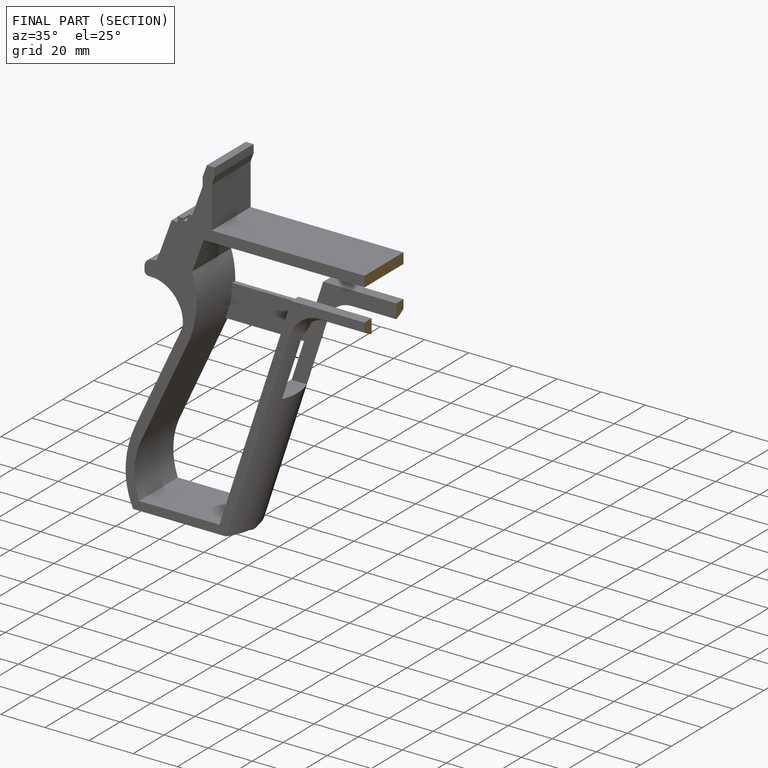
[diagram: finished part — half-section view (interior)]
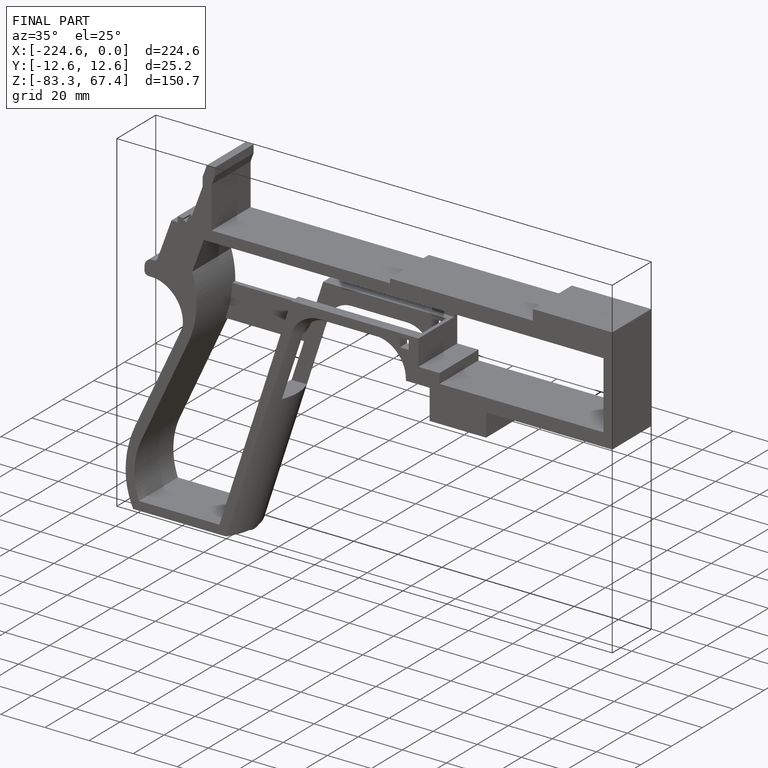
[diagram: finished part — iso view with bounding-box wireframe]
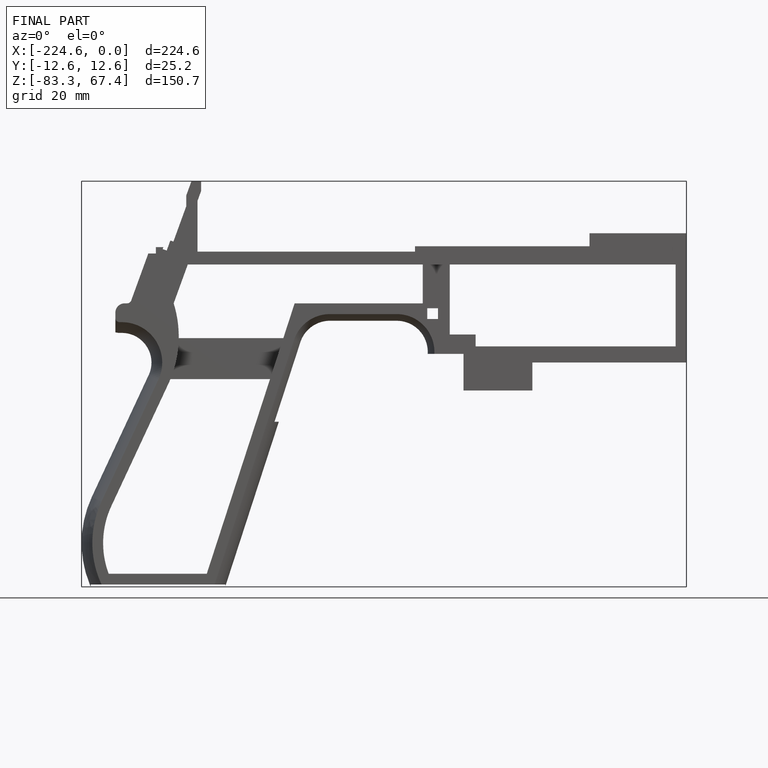
[diagram: finished part — front view with bounding-box wireframe]
